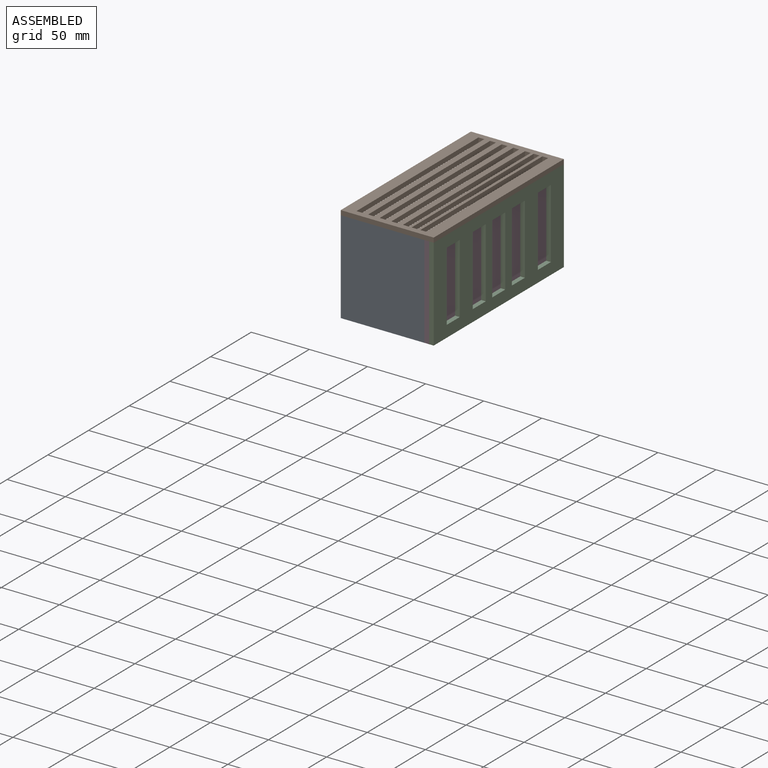
[diagram: assembled view]
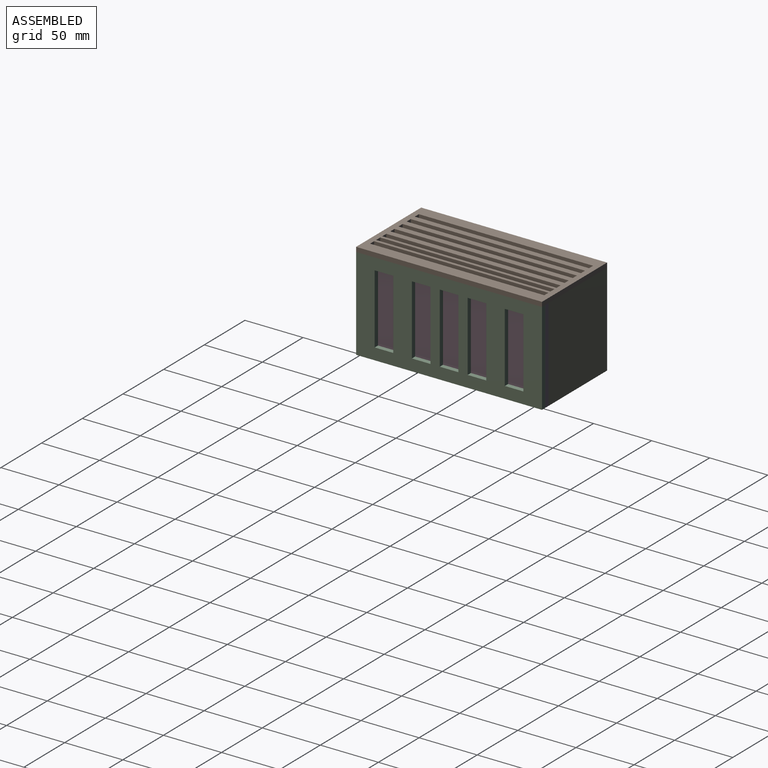
[diagram: assembled view, second angle]
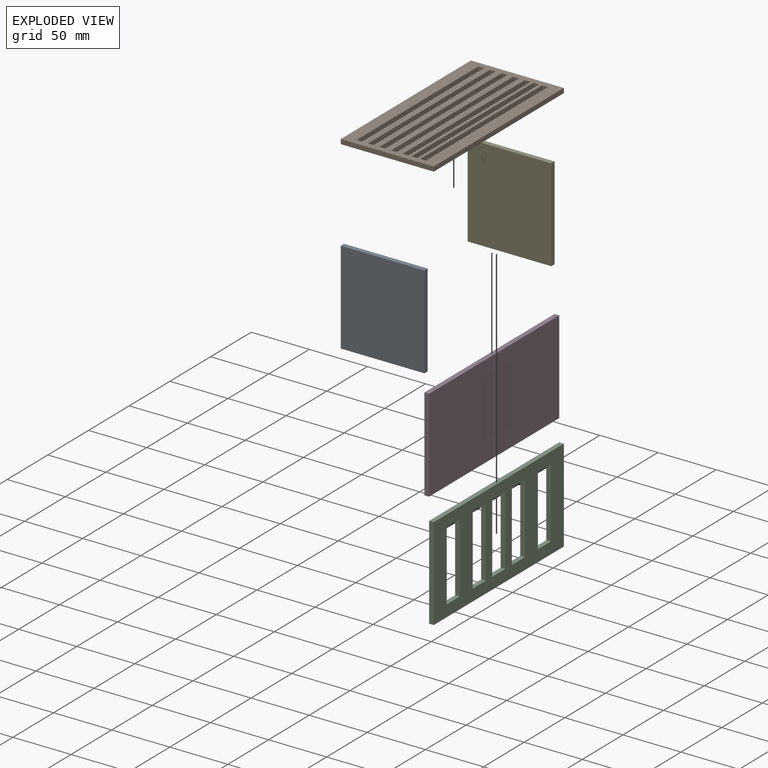
[diagram: exploded view]
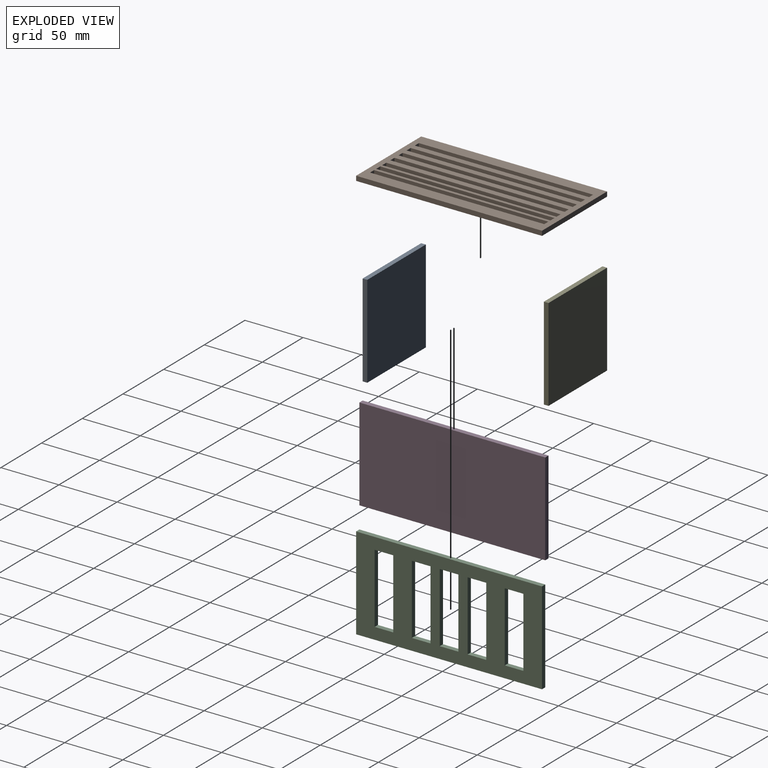
[diagram: exploded view, second angle]
ASSEMBLY  parts=5 mates=4
PART A: 6 faces, bbox 72x4x80 mm
  f0: plane 72x4mm, normal (0,0,1), area 288mm2, adj f1,f3,f4,f5
  f1: plane 80x4mm, normal (-1,0,0), area 320mm2, adj f0,f2,f4,f5
  f2: plane 72x4mm, normal (0,0,-1), area 288mm2, adj f1,f3,f4,f5
  f3: plane 80x4mm, normal (1,0,0), area 320mm2, adj f0,f2,f4,f5
  f4: plane 80x72mm, normal (0,-1,0), area 5760mm2, adj f0,f1,f2,f3
  f5: plane 80x72mm, normal (0,1,0), area 5760mm2, adj f0,f1,f2,f3
PART B: 34 faces, bbox 80x160x4 mm
  f0: plane 5x4mm, normal (0,1,0), area 20mm2, adj f1,f31,f32,f33
  f1: plane 150x4mm, normal (1,0,0), area 600mm2, adj f0,f2,f32,f33
  f2: plane 5x4mm, normal (0,-1,0), area 20mm2, adj f1,f31,f32,f33
  f3: plane 5x4mm, normal (0,1,0), area 20mm2, adj f4,f24,f32,f33
  f4: plane 150x4mm, normal (1,0,0), area 600mm2, adj f3,f5,f32,f33
  f5: plane 5x4mm, normal (0,-1,0), area 20mm2, adj f4,f24,f32,f33
  f6: plane 5x4mm, normal (0,1,0), area 20mm2, adj f7,f25,f32,f33
  f7: plane 150x4mm, normal (1,0,0), area 600mm2, adj f6,f8,f32,f33
  f8: plane 5x4mm, normal (0,-1,0), area 20mm2, adj f7,f25,f32,f33
  f9: plane 150x4mm, normal (1,0,0), area 600mm2, adj f10,f26,f32,f33
  f10: plane 5x4mm, normal (0,-1,0), area 20mm2, adj f9,f11,f32,f33
  f11: plane 150x4mm, normal (-1,0,0), area 600mm2, adj f10,f26,f32,f33
  f12: plane 150x4mm, normal (1,0,0), area 600mm2, adj f13,f27,f32,f33
  f13: plane 5x4mm, normal (0,-1,0), area 20mm2, adj f12,f14,f32,f33
  f14: plane 150x4mm, normal (-1,0,0), area 600mm2, adj f13,f27,f32,f33
  f15: plane 80x4mm, normal (0,-1,0), area 320mm2, adj f16,f28,f32,f33
  f16: plane 160x4mm, normal (1,0,0), area 640mm2, adj f15,f17,f32,f33
  f17: plane 80x4mm, normal (0,1,0), area 320mm2, adj f16,f28,f32,f33
  f18: plane 5x4mm, normal (0,1,0), area 20mm2, adj f19,f29,f32,f33
  f19: plane 150x4mm, normal (1,0,0), area 600mm2, adj f18,f20,f32,f33
  f20: plane 5x4mm, normal (0,-1,0), area 20mm2, adj f19,f29,f32,f33
  f21: plane 150x4mm, normal (-1,0,0), area 600mm2, adj f22,f30,f32,f33
  f22: plane 5x4mm, normal (0,1,0), area 20mm2, adj f21,f23,f32,f33
  f23: plane 150x4mm, normal (1,0,0), area 600mm2, adj f22,f30,f32,f33
  f24: plane 150x4mm, normal (-1,0,0), area 600mm2, adj f3,f5,f32,f33
  f25: plane 150x4mm, normal (-1,0,0), area 600mm2, adj f6,f8,f32,f33
  f26: plane 5x4mm, normal (0,1,0), area 20mm2, adj f9,f11,f32,f33
  f27: plane 5x4mm, normal (0,1,0), area 20mm2, adj f12,f14,f32,f33
  f28: plane 160x4mm, normal (-1,0,0), area 640mm2, adj f15,f17,f32,f33
  f29: plane 150x4mm, normal (-1,0,0), area 600mm2, adj f18,f20,f32,f33
  f30: plane 5x4mm, normal (0,-1,0), area 20mm2, adj f21,f23,f32,f33
  f31: plane 150x4mm, normal (-1,0,0), area 600mm2, adj f0,f2,f32,f33
  f32: plane 160x80mm, normal (0,0,1), area 7550mm2, adj f0,f1,f2,f3,f4,f5,f6,f7
  f33: plane 160x80mm, normal (0,0,-1), area 7550mm2, adj f0,f1,f2,f3,f4,f5,f6,f7
PART C: 26 faces, bbox 160x80x4 mm
  f0: plane 80x4mm, normal (-1,0,0), area 320mm2, adj f1,f23,f24,f25
  f1: plane 160x4mm, normal (0,-1,0), area 640mm2, adj f0,f2,f24,f25
  f2: plane 80x4mm, normal (1,0,0), area 320mm2, adj f1,f23,f24,f25
  f3: plane 16x4mm, normal (0,-1,0), area 64mm2, adj f4,f18,f24,f25
  f4: plane 60x4mm, normal (-1,0,0), area 240mm2, adj f3,f5,f24,f25
  f5: plane 16x4mm, normal (0,1,0), area 64mm2, adj f4,f18,f24,f25
  f6: plane 16x4mm, normal (0,1,0), area 64mm2, adj f7,f19,f24,f25
  f7: plane 60x4mm, normal (1,0,0), area 240mm2, adj f6,f8,f24,f25
  f8: plane 16x4mm, normal (0,-1,0), area 64mm2, adj f7,f19,f24,f25
  f9: plane 60x4mm, normal (1,0,0), area 240mm2, adj f10,f20,f24,f25
  f10: plane 16x4mm, normal (0,-1,0), area 64mm2, adj f9,f11,f24,f25
  f11: plane 60x4mm, normal (-1,0,0), area 240mm2, adj f10,f20,f24,f25
  f12: plane 60x4mm, normal (1,0,0), area 240mm2, adj f13,f21,f24,f25
  f13: plane 16x4mm, normal (0,-1,0), area 64mm2, adj f12,f14,f24,f25
  f14: plane 60x4mm, normal (-1,0,0), area 240mm2, adj f13,f21,f24,f25
  f15: plane 60x4mm, normal (1,0,0), area 240mm2, adj f16,f22,f24,f25
  f16: plane 16x4mm, normal (0,-1,0), area 64mm2, adj f15,f17,f24,f25
  f17: plane 60x4mm, normal (-1,0,0), area 240mm2, adj f16,f22,f24,f25
  f18: plane 60x4mm, normal (1,0,0), area 240mm2, adj f3,f5,f24,f25
  f19: plane 60x4mm, normal (-1,0,0), area 240mm2, adj f6,f8,f24,f25
  f20: plane 16x4mm, normal (0,1,0), area 64mm2, adj f9,f11,f24,f25
  f21: plane 16x4mm, normal (0,1,0), area 64mm2, adj f12,f14,f24,f25
  f22: plane 16x4mm, normal (0,1,0), area 64mm2, adj f15,f17,f24,f25
  f23: plane 160x4mm, normal (0,1,0), area 640mm2, adj f0,f2,f24,f25
  f24: plane 160x80mm, normal (0,0,1), area 8000mm2, adj f0,f1,f2,f3,f4,f5,f6,f7
  f25: plane 160x80mm, normal (0,0,-1), area 8000mm2, adj f0,f1,f2,f3,f4,f5,f6,f7
PART D: 6 faces, bbox 160x80x4 mm
  f0: plane 160x4mm, normal (0,1,0), area 640mm2, adj f1,f3,f4,f5
  f1: plane 80x4mm, normal (-1,0,0), area 320mm2, adj f0,f2,f4,f5
  f2: plane 160x4mm, normal (0,-1,0), area 640mm2, adj f1,f3,f4,f5
  f3: plane 80x4mm, normal (1,0,0), area 320mm2, adj f0,f2,f4,f5
  f4: plane 160x80mm, normal (0,0,1), area 12800mm2, adj f0,f1,f2,f3
  f5: plane 160x80mm, normal (0,0,-1), area 12800mm2, adj f0,f1,f2,f3
PART E: same geometry as A
PLACE A t=(161.78,-27.67,-40.26)mm
PLACE B t=(20.88,-66.35,71.44)mm
PLACE C rot(axis=(0.58,0.58,0.58),120deg) t=(35.33,160.74,74.54)mm
PLACE D rot(axis=(0.58,0.58,0.58),120deg) t=(31.33,-14.64,75.18)mm
PLACE E t=(161.78,128.33,-40.26)mm
MATE fastened E.f0 <-> B.f33  axis (0,0,1) through (-40.67,128.33,71.44)mm
MATE fastened D.f1 <-> C.f0  axis (0,-1,0) through (35.33,-31.67,71.44)mm
MATE fastened C.f23 <-> B.f33  axis (0,0,1) through (39.33,-31.67,71.44)mm
MATE fastened A.f0 <-> B.f33  axis (0,0,1) through (-40.67,-31.67,71.44)mm
